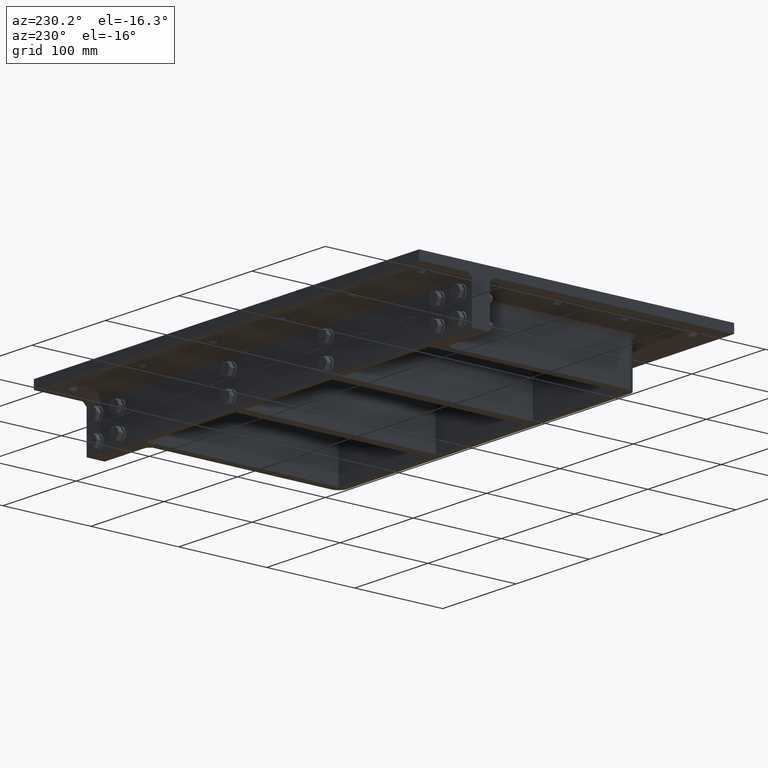
[diagram: clean part render]
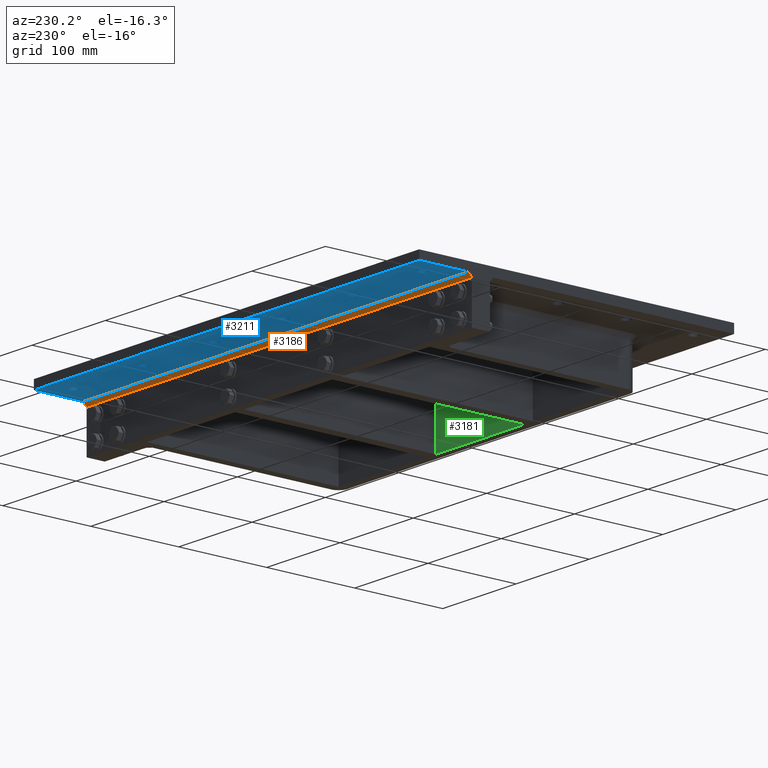
[diagram: same view with three faces highlighted in distinct colors, each labeled with its STEP entity id]
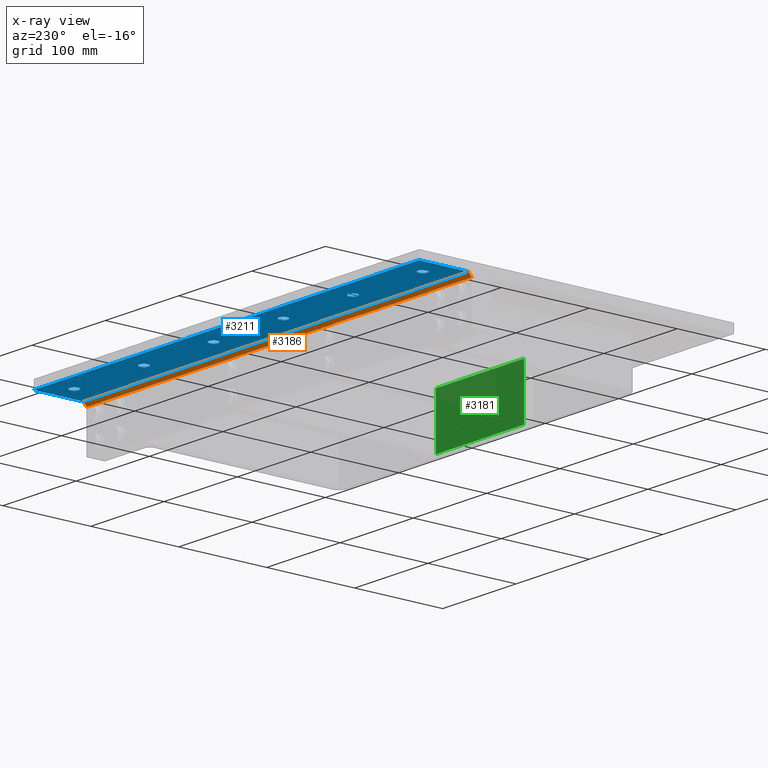
[diagram: x-ray of the same camera — body ghosted, the three highlighted faces saturated]
A machine part, auxiliary view with three faces highlighted in distinct colors.
The next image is the same camera in x-ray (body ghosted, the three faces saturated) — at least one of them is partly hidden behind the body in this view.
Their STEP definitions:

[orange] entity #3186 — the highlighted planar face has unit normal (-0, 0.7071, -0.7071).
#593=FACE_OUTER_BOUND('',#812,.T.);
#812=EDGE_LOOP('',(#2521,#2522,#2523,#2524));
#1103=LINE('',#5180,#1348);
#1104=LINE('',#5182,#1349);
#1105=LINE('',#5184,#1350);
#1106=LINE('',#5185,#1351);
#1348=VECTOR('',#4230,10.);
#1349=VECTOR('',#4231,10.);
#1350=VECTOR('',#4232,10.);
#1351=VECTOR('',#4233,10.);
#1588=VERTEX_POINT('',#5178);
#1589=VERTEX_POINT('',#5179);
#1590=VERTEX_POINT('',#5181);
#1591=VERTEX_POINT('',#5183);
#1924=EDGE_CURVE('',#1588,#1589,#1103,.T.);
#1925=EDGE_CURVE('',#1589,#1590,#1104,.T.);
#1926=EDGE_CURVE('',#1590,#1591,#1105,.T.);
#1927=EDGE_CURVE('',#1591,#1588,#1106,.T.);
#2521=ORIENTED_EDGE('',*,*,#1924,.T.);
#2522=ORIENTED_EDGE('',*,*,#1925,.T.);
#2523=ORIENTED_EDGE('',*,*,#1926,.T.);
#2524=ORIENTED_EDGE('',*,*,#1927,.T.);
#3064=PLANE('',#3632);
#3186=ADVANCED_FACE('',(#593),#3064,.T.);
#3632=AXIS2_PLACEMENT_3D('',#5177,#4228,#4229);
#4228=DIRECTION('center_axis',(-6.51659645627507E-17,0.707106781186548,
-0.707106781186547));
#4229=DIRECTION('ref_axis',(-1.,0.,9.21585908897666E-17));
#4230=DIRECTION('',(2.80686919988161E-16,-0.707106781186547,-0.707106781186548));
#4231=DIRECTION('',(-1.,-9.21585908897666E-17,0.));
#4232=DIRECTION('',(-2.10515189991121E-16,0.707106781186547,0.707106781186548));
#4233=DIRECTION('',(1.,9.21585908897666E-17,0.));
#5177=CARTESIAN_POINT('Origin',(-96.3749999999999,121.15,-12.15));
#5178=CARTESIAN_POINT('',(262.75,123.3,-10.));
#5179=CARTESIAN_POINT('',(262.75,119.,-14.3));
#5180=CARTESIAN_POINT('',(262.75,138.65,5.35));
#5181=CARTESIAN_POINT('',(-262.75,119.,-14.3));
#5182=CARTESIAN_POINT('',(-96.3749999999999,119.,-14.3));
#5183=CARTESIAN_POINT('',(-262.75,123.3,-10.));
#5184=CARTESIAN_POINT('',(-262.75,49.15,-84.15));
#5185=CARTESIAN_POINT('',(-96.3749999999999,123.3,-10.));

[blue] entity #3211 — the highlighted planar face has unit normal (0, 0, 1).
#313=FACE_BOUND('',#856,.T.);
#314=FACE_BOUND('',#857,.T.);
#315=FACE_BOUND('',#858,.T.);
#316=FACE_BOUND('',#859,.T.);
#317=FACE_BOUND('',#860,.T.);
#318=FACE_BOUND('',#861,.T.);
#443=CIRCLE('',#3681,5.25);
#444=CIRCLE('',#3683,5.25);
#445=CIRCLE('',#3685,5.25);
#446=CIRCLE('',#3687,5.25);
#447=CIRCLE('',#3689,5.25);
#448=CIRCLE('',#3691,5.25);
#618=FACE_OUTER_BOUND('',#855,.T.);
#855=EDGE_LOOP('',(#2645,#2646,#2647,#2648));
#856=EDGE_LOOP('',(#2649));
#857=EDGE_LOOP('',(#2650));
#858=EDGE_LOOP('',(#2651));
#859=EDGE_LOOP('',(#2652));
#860=EDGE_LOOP('',(#2653));
#861=EDGE_LOOP('',(#2654));
#1106=LINE('',#5185,#1351);
#1126=LINE('',#5287,#1371);
#1131=LINE('',#5295,#1376);
#1141=LINE('',#5326,#1386);
#1351=VECTOR('',#4233,10.);
#1371=VECTOR('',#4343,10.);
#1376=VECTOR('',#4350,10.);
#1386=VECTOR('',#4388,10.);
#1588=VERTEX_POINT('',#5178);
#1591=VERTEX_POINT('',#5183);
#1628=VERTEX_POINT('',#5286);
#1630=VERTEX_POINT('',#5293);
#1632=VERTEX_POINT('',#5302);
#1633=VERTEX_POINT('',#5306);
#1634=VERTEX_POINT('',#5310);
#1635=VERTEX_POINT('',#5314);
#1636=VERTEX_POINT('',#5318);
#1637=VERTEX_POINT('',#5322);
#1927=EDGE_CURVE('',#1591,#1588,#1106,.T.);
#1977=EDGE_CURVE('',#1628,#1588,#1126,.T.);
#1982=EDGE_CURVE('',#1591,#1630,#1131,.T.);
#1987=EDGE_CURVE('',#1632,#1632,#443,.T.);
#1989=EDGE_CURVE('',#1633,#1633,#444,.T.);
#1991=EDGE_CURVE('',#1634,#1634,#445,.T.);
#1993=EDGE_CURVE('',#1635,#1635,#446,.T.);
#1995=EDGE_CURVE('',#1636,#1636,#447,.T.);
#1997=EDGE_CURVE('',#1637,#1637,#448,.T.);
#1998=EDGE_CURVE('',#1630,#1628,#1141,.T.);
#2645=ORIENTED_EDGE('',*,*,#1927,.F.);
#2646=ORIENTED_EDGE('',*,*,#1982,.T.);
#2647=ORIENTED_EDGE('',*,*,#1998,.T.);
#2648=ORIENTED_EDGE('',*,*,#1977,.T.);
#2649=ORIENTED_EDGE('',*,*,#1987,.T.);
#2650=ORIENTED_EDGE('',*,*,#1989,.T.);
#2651=ORIENTED_EDGE('',*,*,#1991,.T.);
#2652=ORIENTED_EDGE('',*,*,#1993,.T.);
#2653=ORIENTED_EDGE('',*,*,#1995,.T.);
#2654=ORIENTED_EDGE('',*,*,#1997,.T.);
#3071=PLANE('',#3693);
#3211=ADVANCED_FACE('',(#618,#313,#314,#315,#316,#317,#318),#3071,.F.);
#3681=AXIS2_PLACEMENT_3D('',#5304,#4359,#4360);
#3683=AXIS2_PLACEMENT_3D('',#5308,#4364,#4365);
#3685=AXIS2_PLACEMENT_3D('',#5312,#4369,#4370);
#3687=AXIS2_PLACEMENT_3D('',#5316,#4374,#4375);
#3689=AXIS2_PLACEMENT_3D('',#5320,#4379,#4380);
#3691=AXIS2_PLACEMENT_3D('',#5324,#4384,#4385);
#3693=AXIS2_PLACEMENT_3D('',#5327,#4389,#4390);
#4233=DIRECTION('',(1.,9.21585908897666E-17,0.));
#4343=DIRECTION('',(3.96951249027989E-16,-1.,0.));
#4350=DIRECTION('',(-2.97713436770992E-16,1.,0.));
#4359=DIRECTION('center_axis',(0.,0.,1.));
#4360=DIRECTION('ref_axis',(1.,0.,0.));
#4364=DIRECTION('center_axis',(0.,0.,1.));
#4365=DIRECTION('ref_axis',(1.,0.,0.));
#4369=DIRECTION('center_axis',(0.,0.,1.));
#4370=DIRECTION('ref_axis',(1.,0.,0.));
#4374=DIRECTION('center_axis',(0.,0.,1.));
#4375=DIRECTION('ref_axis',(1.,0.,0.));
#4379=DIRECTION('center_axis',(0.,0.,1.));
#4380=DIRECTION('ref_axis',(1.,0.,0.));
#4384=DIRECTION('center_axis',(0.,0.,1.));
#4385=DIRECTION('ref_axis',(1.,0.,0.));
#4388=DIRECTION('',(1.,6.76063497393054E-17,0.));
#4389=DIRECTION('center_axis',(0.,0.,1.));
#4390=DIRECTION('ref_axis',(1.,0.,0.));
#5178=CARTESIAN_POINT('',(262.75,123.3,-10.));
#5183=CARTESIAN_POINT('',(-262.75,123.3,-10.));
#5185=CARTESIAN_POINT('',(-96.3749999999999,123.3,-10.));
#5286=CARTESIAN_POINT('',(262.75,179.,-10.));
#5287=CARTESIAN_POINT('',(262.75,-179.,-10.));
#5293=CARTESIAN_POINT('',(-262.75,179.,-10.));
#5295=CARTESIAN_POINT('',(-262.75,179.,-10.));
#5302=CARTESIAN_POINT('',(-147.9,154.,-10.));
#5304=CARTESIAN_POINT('Origin',(-142.65,154.,-10.));
#5306=CARTESIAN_POINT('',(-52.7999999999998,154.,-10.));
#5308=CARTESIAN_POINT('Origin',(-47.5499999999998,154.,-10.));
#5310=CARTESIAN_POINT('',(42.3000000000002,154.,-10.));
#5312=CARTESIAN_POINT('Origin',(47.5500000000002,154.,-10.));
#5314=CARTESIAN_POINT('',(137.4,154.,-10.));
#5316=CARTESIAN_POINT('Origin',(142.65,154.,-10.));
#5318=CARTESIAN_POINT('',(232.5,154.,-10.));
#5320=CARTESIAN_POINT('Origin',(237.75,154.,-10.));
#5322=CARTESIAN_POINT('',(-243.,154.,-10.));
#5324=CARTESIAN_POINT('Origin',(-237.75,154.,-10.));
#5326=CARTESIAN_POINT('',(262.75,179.,-10.));
#5327=CARTESIAN_POINT('Origin',(1.24344978758018E-13,-8.88178419700125E-14,
-10.));

[green] entity #3181 — the highlighted planar face has unit normal (0, -1, 0).
#588=FACE_OUTER_BOUND('',#807,.T.);
#807=EDGE_LOOP('',(#2501,#2502,#2503,#2504));
#1049=LINE('',#5042,#1294);
#1070=LINE('',#5086,#1315);
#1082=LINE('',#5130,#1327);
#1101=LINE('',#5170,#1346);
#1294=VECTOR('',#4080,10.);
#1315=VECTOR('',#4109,10.);
#1327=VECTOR('',#4155,10.);
#1346=VECTOR('',#4216,10.);
#1552=VERTEX_POINT('',#5039);
#1553=VERTEX_POINT('',#5041);
#1571=VERTEX_POINT('',#5083);
#1572=VERTEX_POINT('',#5085);
#1856=EDGE_CURVE('',#1552,#1553,#1049,.T.);
#1879=EDGE_CURVE('',#1571,#1572,#1070,.T.);
#1903=EDGE_CURVE('',#1571,#1553,#1082,.T.);
#1922=EDGE_CURVE('',#1572,#1552,#1101,.T.);
#2501=ORIENTED_EDGE('',*,*,#1856,.F.);
#2502=ORIENTED_EDGE('',*,*,#1922,.F.);
#2503=ORIENTED_EDGE('',*,*,#1879,.F.);
#2504=ORIENTED_EDGE('',*,*,#1903,.T.);
#3060=PLANE('',#3626);
#3181=ADVANCED_FACE('',(#588),#3060,.F.);
#3626=AXIS2_PLACEMENT_3D('',#5169,#4214,#4215);
#4080=DIRECTION('',(1.,1.47415505344419E-16,0.));
#4109=DIRECTION('',(-1.,-1.47415505344419E-16,0.));
#4155=DIRECTION('',(0.,0.,-1.));
#4214=DIRECTION('center_axis',(1.47415505344419E-16,-1.,0.));
#4215=DIRECTION('ref_axis',(-1.,-1.47415505344419E-16,0.));
#4216=DIRECTION('',(0.,0.,-1.));
#5039=CARTESIAN_POINT('',(-60.25,-109.,-60.));
#5041=CARTESIAN_POINT('',(60.25,-109.,-60.));
#5042=CARTESIAN_POINT('',(30.125,-109.,-60.));
#5083=CARTESIAN_POINT('',(60.25,-109.,0.));
#5085=CARTESIAN_POINT('',(-60.25,-109.,0.));
#5086=CARTESIAN_POINT('',(30.125,-109.,0.));
#5130=CARTESIAN_POINT('',(60.25,-109.,0.));
#5169=CARTESIAN_POINT('Origin',(60.25,-109.,0.));
#5170=CARTESIAN_POINT('',(-60.25,-109.,0.));